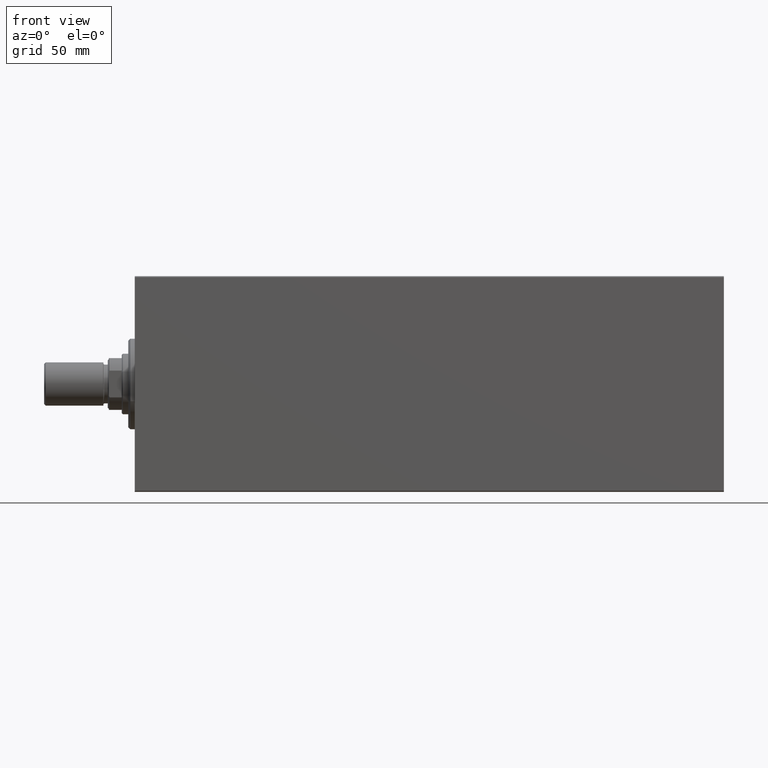
[diagram: clean part render]
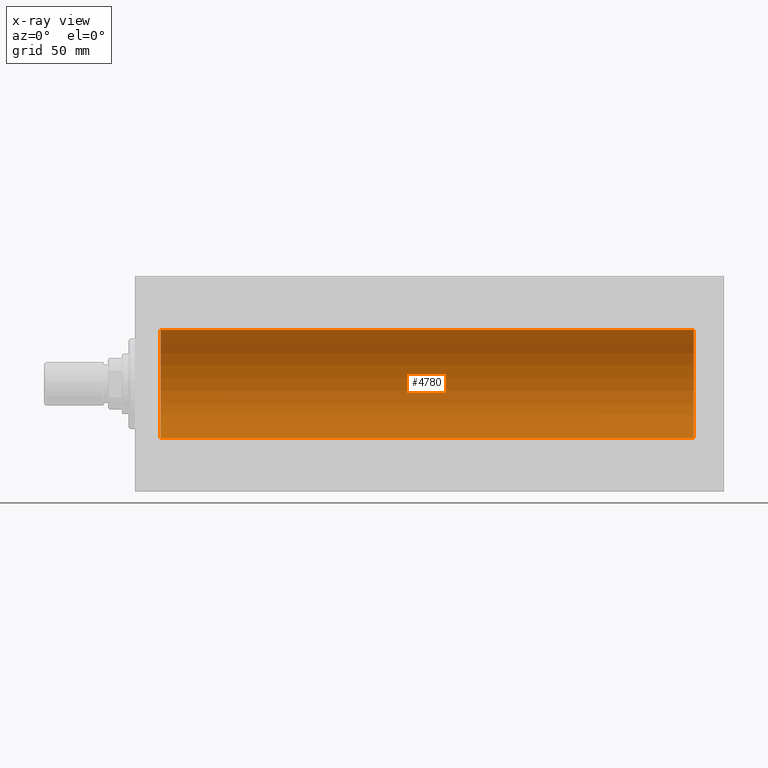
[diagram: x-ray — body ghosted, one internal face saturated and labeled with its STEP entity id]
A machine part, front view, then the same camera in x-ray: the body is ghosted and one INTERNAL B-rep face — a face not visible from any outside direction — is saturated and labeled: STEP entity #4780.
In plain terms, the highlighted cylindrical surface (partial cylindrical patch) has radius 25 mm, axis along (-1, -0, -0).
Its self-contained STEP definition (entity closure, byte-faithful):
#667 = DIRECTION ( 'NONE',  ( 0.000000000000000000, 0.000000000000000000, 1.000000000000000000 ) ) ;
#3022 = EDGE_CURVE ( 'NONE', #25006, #38939, #32131, .T. ) ;
#3724 = AXIS2_PLACEMENT_3D ( 'NONE', #27540, #17018, #667 ) ;
#4173 = LINE ( 'NONE', #17847, #12854 ) ;
#4613 = VERTEX_POINT ( 'NONE', #26916 ) ;
#4780 = ADVANCED_FACE ( 'NONE', ( #6923 ), #20588, .F. ) ;
#5568 = ORIENTED_EDGE ( 'NONE', *, *, #26707, .F. ) ;
#6374 = DIRECTION ( 'NONE',  ( 0.000000000000000000, 0.000000000000000000, 1.000000000000000000 ) ) ;
#6923 = FACE_OUTER_BOUND ( 'NONE', #14344, .T. ) ;
#7371 = DIRECTION ( 'NONE',  ( -1.000000000000000000, -0.000000000000000000, -0.000000000000000000 ) ) ;
#7588 = LINE ( 'NONE', #31085, #39917 ) ;
#12854 = VECTOR ( 'NONE', #14495, 1000.000000000000000 ) ;
#14344 = EDGE_LOOP ( 'NONE', ( #5568, #14517, #35202, #36905 ) ) ;
#14495 = DIRECTION ( 'NONE',  ( -1.000000000000000000, -0.000000000000000000, -0.000000000000000000 ) ) ;
#14517 = ORIENTED_EDGE ( 'NONE', *, *, #3022, .F. ) ;
#16312 = CARTESIAN_POINT ( 'NONE',  ( 259.0000000000000000, 3.061616997868383043E-15, -25.00000000000000000 ) ) ;
#16348 = EDGE_CURVE ( 'NONE', #25006, #4613, #7588, .T. ) ;
#17018 = DIRECTION ( 'NONE',  ( -1.000000000000000000, 0.000000000000000000, 0.000000000000000000 ) ) ;
#17234 = DIRECTION ( 'NONE',  ( 0.000000000000000000, 0.000000000000000000, 1.000000000000000000 ) ) ;
#17847 = CARTESIAN_POINT ( 'NONE',  ( 259.0000000000000000, 3.061616997868383043E-15, -25.00000000000000000 ) ) ;
#20262 = CARTESIAN_POINT ( 'NONE',  ( 259.0000000000000000, 0.000000000000000000, 0.000000000000000000 ) ) ;
#20588 = CYLINDRICAL_SURFACE ( 'NONE', #42081, 25.00000000000000000 ) ;
#23385 = DIRECTION ( 'NONE',  ( -1.000000000000000000, 0.000000000000000000, 0.000000000000000000 ) ) ;
#25006 = VERTEX_POINT ( 'NONE', #41149 ) ;
#26707 = EDGE_CURVE ( 'NONE', #38939, #31282, #4173, .T. ) ;
#26916 = CARTESIAN_POINT ( 'NONE',  ( 12.00000000000001066, 0.000000000000000000, 25.00000000000000000 ) ) ;
#27540 = CARTESIAN_POINT ( 'NONE',  ( 12.00000000000001066, 0.000000000000000000, 0.000000000000000000 ) ) ;
#30585 = AXIS2_PLACEMENT_3D ( 'NONE', #20262, #23385, #6374 ) ;
#31014 = CARTESIAN_POINT ( 'NONE',  ( 12.00000000000001066, 3.061616997868383043E-15, -25.00000000000000000 ) ) ;
#31085 = CARTESIAN_POINT ( 'NONE',  ( 259.0000000000000000, 0.000000000000000000, 25.00000000000000000 ) ) ;
#31282 = VERTEX_POINT ( 'NONE', #31014 ) ;
#32131 = CIRCLE ( 'NONE', #30585, 25.00000000000000000 ) ;
#34231 = CARTESIAN_POINT ( 'NONE',  ( 259.0000000000000000, 0.000000000000000000, 0.000000000000000000 ) ) ;
#35202 = ORIENTED_EDGE ( 'NONE', *, *, #16348, .T. ) ;
#36905 = ORIENTED_EDGE ( 'NONE', *, *, #38703, .T. ) ;
#38703 = EDGE_CURVE ( 'NONE', #4613, #31282, #42338, .T. ) ;
#38939 = VERTEX_POINT ( 'NONE', #16312 ) ;
#39917 = VECTOR ( 'NONE', #7371, 1000.000000000000000 ) ;
#40739 = DIRECTION ( 'NONE',  ( -1.000000000000000000, -0.000000000000000000, -0.000000000000000000 ) ) ;
#41149 = CARTESIAN_POINT ( 'NONE',  ( 259.0000000000000000, 0.000000000000000000, 25.00000000000000000 ) ) ;
#42081 = AXIS2_PLACEMENT_3D ( 'NONE', #34231, #40739, #17234 ) ;
#42338 = CIRCLE ( 'NONE', #3724, 25.00000000000000000 ) ;